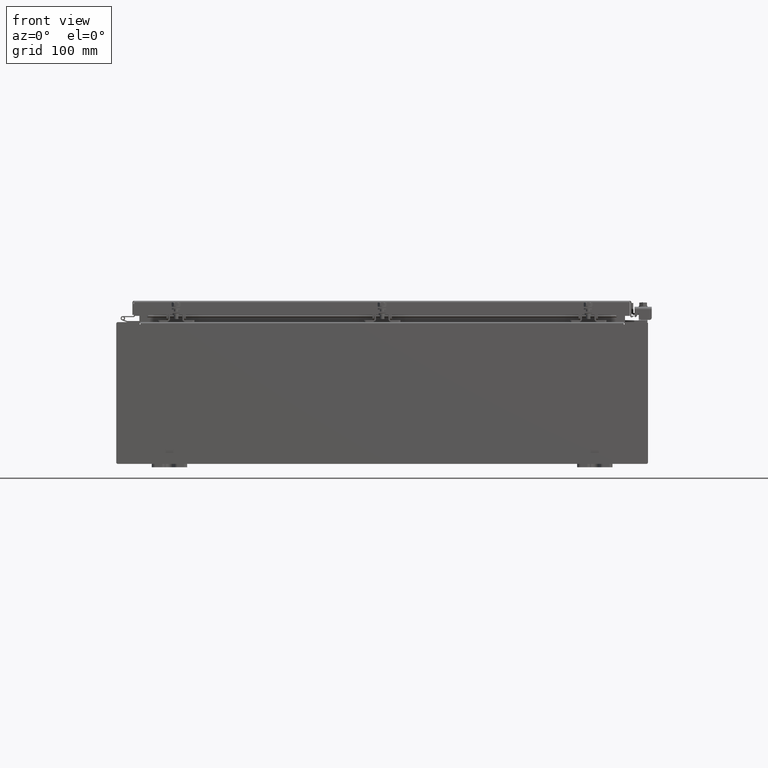
[diagram: clean part render]
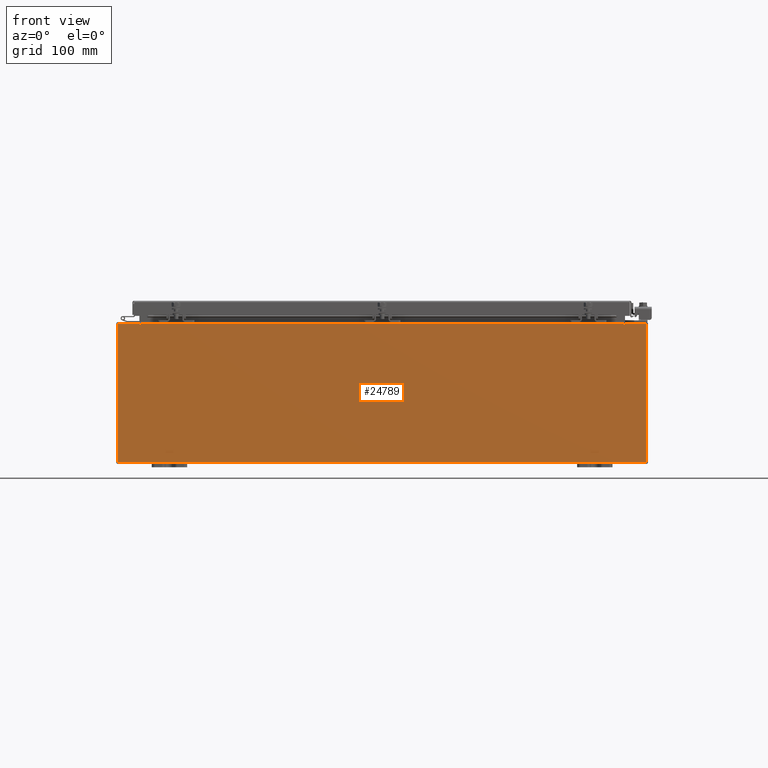
[diagram: same view with one face highlighted and labeled with its STEP entity id]
A machine part, front view. The second image highlights one B-rep face of the part: STEP entity #24789.
In plain terms, the highlighted planar face has unit normal (-0, 1, -0).
Its self-contained STEP definition (entity closure, byte-faithful):
#179 = FACE_OUTER_BOUND ( 'NONE', #3394, .T. ) ;
#280 = ORIENTED_EDGE ( 'NONE', *, *, #16338, .F. ) ;
#765 = CARTESIAN_POINT ( 'NONE',  ( -13.63719999999999600, -0.0000000000000000000, 3.874949999999999700 ) ) ;
#1254 = VECTOR ( 'NONE', #5709, 39.37007874015748100 ) ;
#1527 = CARTESIAN_POINT ( 'NONE',  ( -13.67454999999999500, 0.0000000000000000000, 3.925299999999999600 ) ) ;
#1587 = DIRECTION ( 'NONE',  ( 0.0000000000000000000, -0.0000000000000000000, -1.000000000000000000 ) ) ;
#1856 = VERTEX_POINT ( 'NONE', #9904 ) ;
#1988 = VERTEX_POINT ( 'NONE', #10447 ) ;
#2145 = ORIENTED_EDGE ( 'NONE', *, *, #24183, .T. ) ;
#2677 = ORIENTED_EDGE ( 'NONE', *, *, #8959, .T. ) ;
#3043 = VECTOR ( 'NONE', #29800, 39.37007874015748100 ) ;
#3394 = EDGE_LOOP ( 'NONE', ( #10104, #280, #10897, #14967, #23636, #13252, #9841, #30422, #31529, #2145, #2677, #23534 ) ) ;
#4343 = CARTESIAN_POINT ( 'NONE',  ( 14.92530000000000200, 0.0000000000000000000, 3.925299999999999600 ) ) ;
#4492 = VERTEX_POINT ( 'NONE', #1527 ) ;
#4563 = CARTESIAN_POINT ( 'NONE',  ( -14.92529999999999800, 0.0000000000000000000, -3.925299999999999600 ) ) ;
#4639 = VERTEX_POINT ( 'NONE', #4563 ) ;
#4663 = EDGE_CURVE ( 'NONE', #22305, #29395, #29688, .T. ) ;
#4787 = CARTESIAN_POINT ( 'NONE',  ( 13.65587500000000200, 0.0000000000000000000, 3.874949999999999700 ) ) ;
#5016 = VECTOR ( 'NONE', #8457, 39.37007874015748100 ) ;
#5372 = CARTESIAN_POINT ( 'NONE',  ( 13.63720000000000400, 0.0000000000000000000, 3.874949999999999700 ) ) ;
#5531 = DIRECTION ( 'NONE',  ( 0.0000000000000000000, 0.0000000000000000000, -1.000000000000000000 ) ) ;
#5709 = DIRECTION ( 'NONE',  ( 0.0000000000000000000, 0.0000000000000000000, 1.000000000000000000 ) ) ;
#6207 = DIRECTION ( 'NONE',  ( -1.000000000000000000, -0.0000000000000000000, -0.0000000000000000000 ) ) ;
#7259 = EDGE_CURVE ( 'NONE', #29395, #28525, #15366, .T. ) ;
#7313 = DIRECTION ( 'NONE',  ( 0.0000000000000000000, 0.0000000000000000000, -1.000000000000000000 ) ) ;
#7401 = CARTESIAN_POINT ( 'NONE',  ( 14.92530000000000200, 0.0000000000000000000, -3.925299999999999600 ) ) ;
#8432 = CIRCLE ( 'NONE', #30242, 0.01867499999999949400 ) ;
#8457 = DIRECTION ( 'NONE',  ( 0.0000000000000000000, 0.0000000000000000000, -1.000000000000000000 ) ) ;
#8632 = CARTESIAN_POINT ( 'NONE',  ( 13.67454999999983300, -0.0000000000000000000, -5.935537951421816200E-013 ) ) ;
#8932 = CARTESIAN_POINT ( 'NONE',  ( 0.0000000000000000000, 0.0000000000000000000, 0.0000000000000000000 ) ) ;
#8959 = EDGE_CURVE ( 'NONE', #4639, #1988, #25130, .T. ) ;
#9009 = VECTOR ( 'NONE', #17845, 39.37007874015748100 ) ;
#9841 = ORIENTED_EDGE ( 'NONE', *, *, #26871, .F. ) ;
#9904 = CARTESIAN_POINT ( 'NONE',  ( -13.63719999999999600, 1.024442997624098700E-016, 3.912299999999999700 ) ) ;
#10006 = VECTOR ( 'NONE', #6207, 39.37007874015748100 ) ;
#10104 = ORIENTED_EDGE ( 'NONE', *, *, #21243, .F. ) ;
#10447 = CARTESIAN_POINT ( 'NONE',  ( -14.92529999999999800, 0.0000000000000000000, 3.925299999999999600 ) ) ;
#10648 = DIRECTION ( 'NONE',  ( -0.0000000000000000000, -0.0000000000000000000, 1.000000000000000000 ) ) ;
#10678 = VECTOR ( 'NONE', #28698, 39.37007874015748100 ) ;
#10874 = DIRECTION ( 'NONE',  ( -0.0000000000000000000, 1.000000000000000000, -0.0000000000000000000 ) ) ;
#10897 = ORIENTED_EDGE ( 'NONE', *, *, #15624, .F. ) ;
#11375 = VERTEX_POINT ( 'NONE', #4343 ) ;
#11697 = LINE ( 'NONE', #21094, #30156 ) ;
#11961 = VERTEX_POINT ( 'NONE', #27089 ) ;
#13149 = EDGE_CURVE ( 'NONE', #32292, #11375, #29838, .T. ) ;
#13252 = ORIENTED_EDGE ( 'NONE', *, *, #4663, .F. ) ;
#13948 = VECTOR ( 'NONE', #5531, 39.37007874015748100 ) ;
#14206 = CARTESIAN_POINT ( 'NONE',  ( -13.67454999999999500, -0.0000000000000000000, 0.0000000000000000000 ) ) ;
#14746 = LINE ( 'NONE', #20609, #13948 ) ;
#14967 = ORIENTED_EDGE ( 'NONE', *, *, #17248, .T. ) ;
#15366 = LINE ( 'NONE', #23322, #1254 ) ;
#15624 = EDGE_CURVE ( 'NONE', #1856, #18384, #14746, .T. ) ;
#16142 = VECTOR ( 'NONE', #19263, 39.37007874015748100 ) ;
#16292 = CARTESIAN_POINT ( 'NONE',  ( -14.92529999999999800, 0.0000000000000000000, -3.925299999999999600 ) ) ;
#16338 = EDGE_CURVE ( 'NONE', #18384, #11961, #8432, .T. ) ;
#16589 = DIRECTION ( 'NONE',  ( 0.0000000000000000000, -1.000000000000000000, 0.0000000000000000000 ) ) ;
#17248 = EDGE_CURVE ( 'NONE', #1856, #28525, #29764, .T. ) ;
#17281 = VERTEX_POINT ( 'NONE', #7401 ) ;
#17845 = DIRECTION ( 'NONE',  ( 1.000000000000000000, 0.0000000000000000000, 0.0000000000000000000 ) ) ;
#18384 = VERTEX_POINT ( 'NONE', #765 ) ;
#18391 = VECTOR ( 'NONE', #10648, 39.37007874015748100 ) ;
#19263 = DIRECTION ( 'NONE',  ( 0.0000000000000000000, 0.0000000000000000000, 1.000000000000000000 ) ) ;
#19963 = LINE ( 'NONE', #26047, #5016 ) ;
#20300 = CARTESIAN_POINT ( 'NONE',  ( -14.92529999999999800, 0.0000000000000000000, 3.925299999999999600 ) ) ;
#20609 = CARTESIAN_POINT ( 'NONE',  ( -13.63719999999999600, -0.0000000000000000000, 0.0000000000000000000 ) ) ;
#20677 = CARTESIAN_POINT ( 'NONE',  ( -14.92529999999999800, 0.0000000000000000000, 3.925299999999999600 ) ) ;
#21094 = CARTESIAN_POINT ( 'NONE',  ( -14.92529999999999800, 0.0000000000000000000, 3.925299999999999600 ) ) ;
#21243 = EDGE_CURVE ( 'NONE', #11961, #4492, #22891, .T. ) ;
#21891 = CARTESIAN_POINT ( 'NONE',  ( 13.67455000000000400, 0.0000000000000000000, 3.925299999999999600 ) ) ;
#22305 = VERTEX_POINT ( 'NONE', #28638 ) ;
#22401 = DIRECTION ( 'NONE',  ( -0.0000000000000000000, 1.000000000000000000, -0.0000000000000000000 ) ) ;
#22891 = LINE ( 'NONE', #14206, #16142 ) ;
#23322 = CARTESIAN_POINT ( 'NONE',  ( 13.63720000000000400, 0.0000000000000000000, 0.0000000000000000000 ) ) ;
#23534 = ORIENTED_EDGE ( 'NONE', *, *, #29556, .T. ) ;
#23636 = ORIENTED_EDGE ( 'NONE', *, *, #7259, .F. ) ;
#24075 = LINE ( 'NONE', #8632, #10678 ) ;
#24183 = EDGE_CURVE ( 'NONE', #17281, #4639, #30057, .T. ) ;
#24789 = ADVANCED_FACE ( 'NONE', ( #179 ), #31665, .F. ) ;
#24899 = CARTESIAN_POINT ( 'NONE',  ( -13.63719999999999800, 1.024442997624098700E-016, 3.912299999999999700 ) ) ;
#25130 = LINE ( 'NONE', #20677, #18391 ) ;
#25363 = CARTESIAN_POINT ( 'NONE',  ( 13.63720000000000400, 0.0000000000000000000, 3.912299999999999700 ) ) ;
#25951 = CARTESIAN_POINT ( 'NONE',  ( -13.65587499999999600, 0.0000000000000000000, 3.874949999999999700 ) ) ;
#26047 = CARTESIAN_POINT ( 'NONE',  ( 14.92530000000000200, 0.0000000000000000000, 3.925299999999999600 ) ) ;
#26075 = AXIS2_PLACEMENT_3D ( 'NONE', #4787, #22401, #7313 ) ;
#26156 = DIRECTION ( 'NONE',  ( 1.000000000000000000, 0.0000000000000000000, 0.0000000000000000000 ) ) ;
#26871 = EDGE_CURVE ( 'NONE', #32292, #22305, #24075, .T. ) ;
#27085 = AXIS2_PLACEMENT_3D ( 'NONE', #8932, #16589, #1587 ) ;
#27089 = CARTESIAN_POINT ( 'NONE',  ( -13.67454999999999500, 0.0000000000000000000, 3.874949999999999700 ) ) ;
#28441 = DIRECTION ( 'NONE',  ( 0.0000000000000000000, 0.0000000000000000000, -1.000000000000000000 ) ) ;
#28525 = VERTEX_POINT ( 'NONE', #25363 ) ;
#28638 = CARTESIAN_POINT ( 'NONE',  ( 13.67455000000000200, 0.0000000000000000000, 3.874949999999999700 ) ) ;
#28698 = DIRECTION ( 'NONE',  ( -4.340572780400004900E-014, 0.0000000000000000000, -1.000000000000000000 ) ) ;
#29395 = VERTEX_POINT ( 'NONE', #5372 ) ;
#29544 = EDGE_CURVE ( 'NONE', #11375, #17281, #19963, .T. ) ;
#29556 = EDGE_CURVE ( 'NONE', #1988, #4492, #11697, .T. ) ;
#29688 = CIRCLE ( 'NONE', #26075, 0.01867499999999949400 ) ;
#29764 = LINE ( 'NONE', #24899, #3043 ) ;
#29800 = DIRECTION ( 'NONE',  ( 1.000000000000000000, 0.0000000000000000000, 0.0000000000000000000 ) ) ;
#29838 = LINE ( 'NONE', #20300, #9009 ) ;
#30057 = LINE ( 'NONE', #16292, #10006 ) ;
#30156 = VECTOR ( 'NONE', #26156, 39.37007874015748100 ) ;
#30242 = AXIS2_PLACEMENT_3D ( 'NONE', #25951, #10874, #28441 ) ;
#30422 = ORIENTED_EDGE ( 'NONE', *, *, #13149, .T. ) ;
#31529 = ORIENTED_EDGE ( 'NONE', *, *, #29544, .T. ) ;
#31665 = PLANE ( 'NONE',  #27085 ) ;
#32292 = VERTEX_POINT ( 'NONE', #21891 ) ;